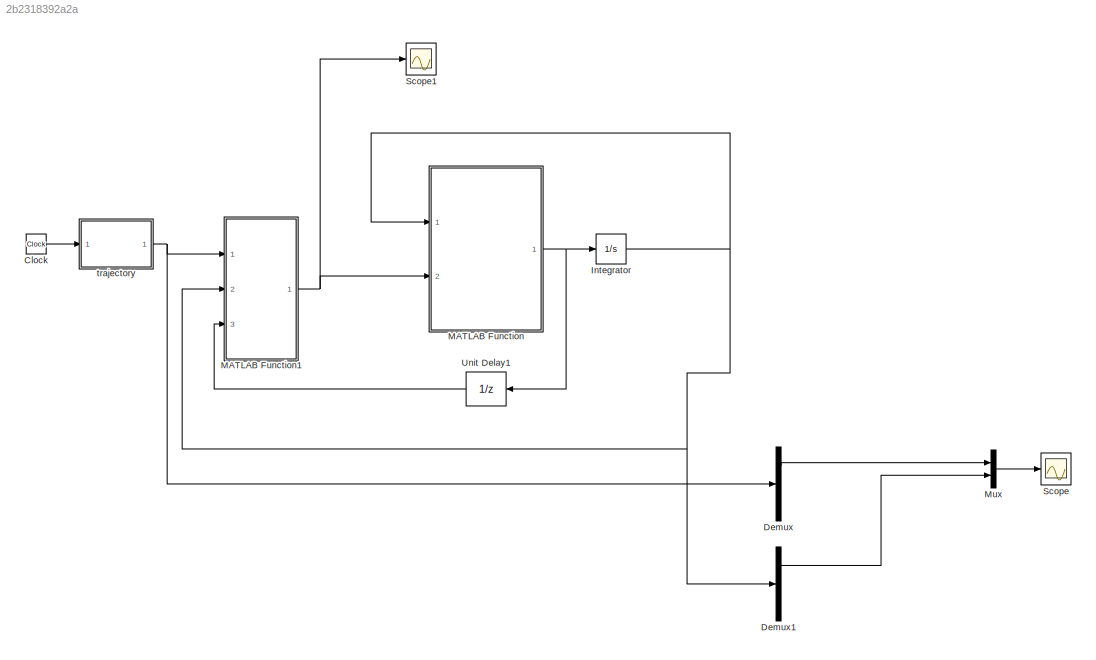
MODEL slx_2b2318392a2a
KIND model
CONFIG AbsTol = auto
CONFIG EnableMultiTasking = off
CONFIG FixedStep = 10e-4
CONFIG MaxStep = auto
CONFIG MinStep = auto
CONFIG RelTol = auto
CONFIG SampleTimeConstraint = Unconstrained
CONFIG Solver = FixedStepAuto
CONFIG SolverName = FixedStepAuto
CONFIG StartTime = 0.0
CONFIG StopTime = 10.0
BLOCK [Clock] Clock
BLOCK [Demux] Demux
  DisplayOption = bar
  Outputs = 3
  Ports = [1, 3]
BLOCK [Demux] Demux1
  DisplayOption = bar
  Outputs = 3
  Ports = [1, 3]
BLOCK [Integrator] Integrator
  InitialCondition = [0;0;0]
  Ports = [1, 1]
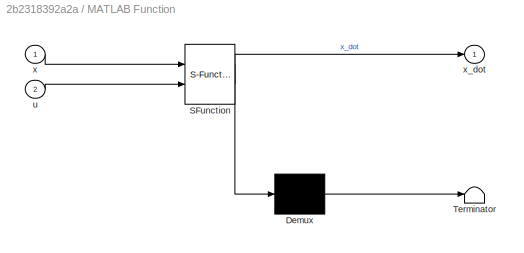
BLOCK [SubSystem] MATLAB Function
  ErrorFcn = Stateflow.Translate.translate
  PermitHierarchicalResolution = ExplicitOnly
  Ports = [2, 1]
  RequestExecContextInheritance = off
  SFBlockType = MATLAB Function
  TreatAsAtomicUnit = on
  Variant = off
BLOCK [Demux] MATLAB Function/ Demux 
  Outputs = 1
  Ports = [1, 1]
BLOCK [S-Function] MATLAB Function/ SFunction 
  EnableBusSupport = on
  FunctionName = sf_sfun
  PortCounts = [2 2]
  Ports = [2, 2]
  SFcnIsStateOwnerBlock = off
  SFunctionDeploymentMode = off
  Tag = Stateflow S-Function plant_1 2
BLOCK [Terminator] MATLAB Function/ Terminator 
BLOCK [Inport] MATLAB Function/u
  IconDisplay = Port number
  Port = 2
BLOCK [Inport] MATLAB Function/x
  IconDisplay = Port number
BLOCK [Outport] MATLAB Function/x_dot
  IconDisplay = Port number
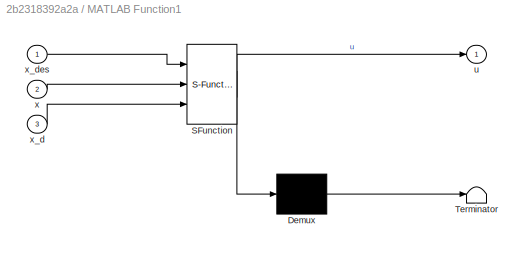
BLOCK [SubSystem] MATLAB Function1
  ErrorFcn = Stateflow.Translate.translate
  PermitHierarchicalResolution = ExplicitOnly
  Ports = [3, 1]
  RequestExecContextInheritance = off
  SFBlockType = MATLAB Function
  TreatAsAtomicUnit = on
  Variant = off
BLOCK [Demux] MATLAB Function1/ Demux 
  Outputs = 1
  Ports = [1, 1]
BLOCK [S-Function] MATLAB Function1/ SFunction 
  EnableBusSupport = on
  FunctionName = sf_sfun
  PortCounts = [3 2]
  Ports = [3, 2]
  SFcnIsStateOwnerBlock = off
  SFunctionDeploymentMode = off
  Tag = Stateflow S-Function plant_1 1
BLOCK [Terminator] MATLAB Function1/ Terminator 
BLOCK [Outport] MATLAB Function1/u
  IconDisplay = Port number
BLOCK [Inport] MATLAB Function1/x
  IconDisplay = Port number
  Port = 2
BLOCK [Inport] MATLAB Function1/x_d
  IconDisplay = Port number
  Port = 3
BLOCK [Inport] MATLAB Function1/x_des
  IconDisplay = Port number
BLOCK [Mux] Mux
  DisplayOption = bar
  Inputs = 2
  Ports = [2, 1]
BLOCK [Scope] Scope
  NumInputPorts = 1
  Ports = [1]
  ScopeSpecificationString = Simulink.scopes.TimeScopeBlockCfg('CurrentConfiguration', extmgr.ConfigurationSet(extmgr.Configuration('Core','General UI',true),extmgr.Configuration('Core','Source UI',true),extmgr.Configuration('Sources','WiredSimulink',true),extmgr.Configuration('Visuals','Time Domain',true,'SerializedDisplays',{struct('MinYLimReal','-1.25','MaxYLimReal','1.25','YLabelReal','','MinYLimMag','0.00000','MaxYLimMag...<+1347ch>
BLOCK [Scope] Scope1
  NumInputPorts = 1
  Ports = [1]
  ScopeSpecificationString = Simulink.scopes.TimeScopeBlockCfg('CurrentConfiguration', extmgr.ConfigurationSet(extmgr.Configuration('Core','General UI',true),extmgr.Configuration('Core','Source UI',true),extmgr.Configuration('Sources','WiredSimulink',true,'DataLoggingVariableName','ScopeData1'),extmgr.Configuration('Visuals','Time Domain',true,'SerializedDisplays',{struct('MinYLimReal','-71.93997','MaxYLimReal','107.12473','Y...<+1412ch>
BLOCK [UnitDelay] Unit Delay1
  InputProcessing = Elements as channels (sample based)
  SampleTime = -1
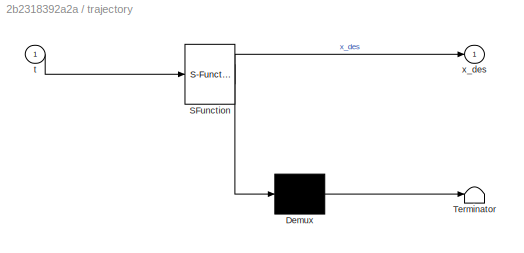
BLOCK [SubSystem] trajectory
  ErrorFcn = Stateflow.Translate.translate
  PermitHierarchicalResolution = ExplicitOnly
  Ports = [1, 1]
  RequestExecContextInheritance = off
  SFBlockType = MATLAB Function
  TreatAsAtomicUnit = on
  Variant = off
BLOCK [Demux] trajectory/ Demux 
  Outputs = 1
  Ports = [1, 1]
BLOCK [S-Function] trajectory/ SFunction 
  EnableBusSupport = on
  FunctionName = sf_sfun
  PortCounts = [1 2]
  Ports = [1, 2]
  SFcnIsStateOwnerBlock = off
  SFunctionDeploymentMode = off
  Tag = Stateflow S-Function plant_1 3
BLOCK [Terminator] trajectory/ Terminator 
BLOCK [Inport] trajectory/t
  IconDisplay = Port number
BLOCK [Outport] trajectory/x_des
  IconDisplay = Port number
LINE Clock:1 -> trajectory:1
LINE Demux1:1 -> Mux:2
LINE Demux:1 -> Mux:1
NET Integrator:1 -> Demux1:1, MATLAB Function1:2, MATLAB Function:1
NET MATLAB Function1:1 -> MATLAB Function:2, Scope1:1
NET MATLAB Function:1 -> Integrator:1, Unit Delay1:1
LINE Mux:1 -> Scope:1
LINE Unit Delay1:1 -> MATLAB Function1:3
NET trajectory:1 -> Demux:1, MATLAB Function1:1
note: NET lines group one-source signal fan-out (src -> all destinations, sorted); 1:1 wires keep LINE
CHART MATLAB Function1 states=1 transitions=1
  STATE_LABEL 'eML_blk_kernel()'
  STATE_LABEL 'SCRIPT:\nfunction u = fcn(x_des,x,x_d)\n\nf_x = sin(x(1)) + x(2)*x(3) + x(1)*x(2)^2;\ng_x = 1 + x(1)^2;\n\nKp = 100;\nKd = 14.14;\n\n% v = y_dd + Kd*e_d + Kp*e;\n\ne = x_des(1) - x(1);\ne_d = x_des(2) - x_d(1);\n\nv = x_des(3) + Kd*e_d + Kp*e;\n\nu = 1/g_x*(-f_x + v);\n\nend'
CHART MATLAB Function states=1 transitions=1
  STATE_LABEL 'eML_blk_kernel()'
  STATE_LABEL 'SCRIPT:\nfunction x_dot = fcn(x,u)\n\nq = zeros(3,1);\n\nq(1) = x(1)*x(2) + x(3);\nq(2) = -2*x(2) + x(1)*u(1);\nq(3) = sin(x(1)) + 2*x(1)*x(2) + u(1);\n\nx_dot = q;\n\nend'
CHART trajectory states=1 transitions=1
  STATE_LABEL 'eML_blk_kernel()'
  STATE_LABEL "SCRIPT:\nfunction x_des = fcn(t)\n\nA = 1;\nf = 1;\nw = 2*pi*f;\n\ny = A*sin(w*t);\ny_d = A*w*cos(w*t);\ny_dd = -A*w*w*sin(w*t);\n\nx_des = [y y_d y_dd]';\n\nend"
